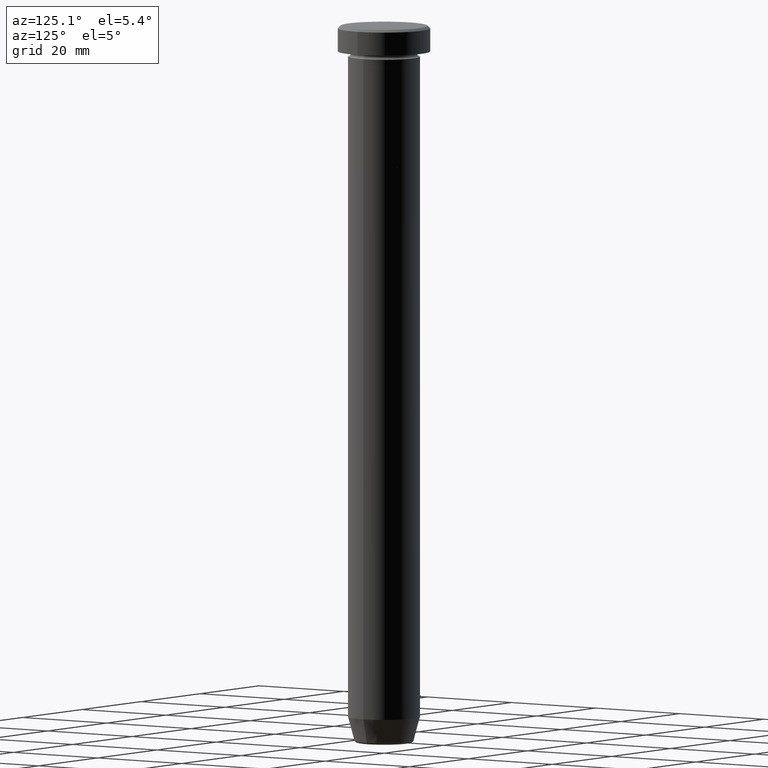
[diagram: clean part render]
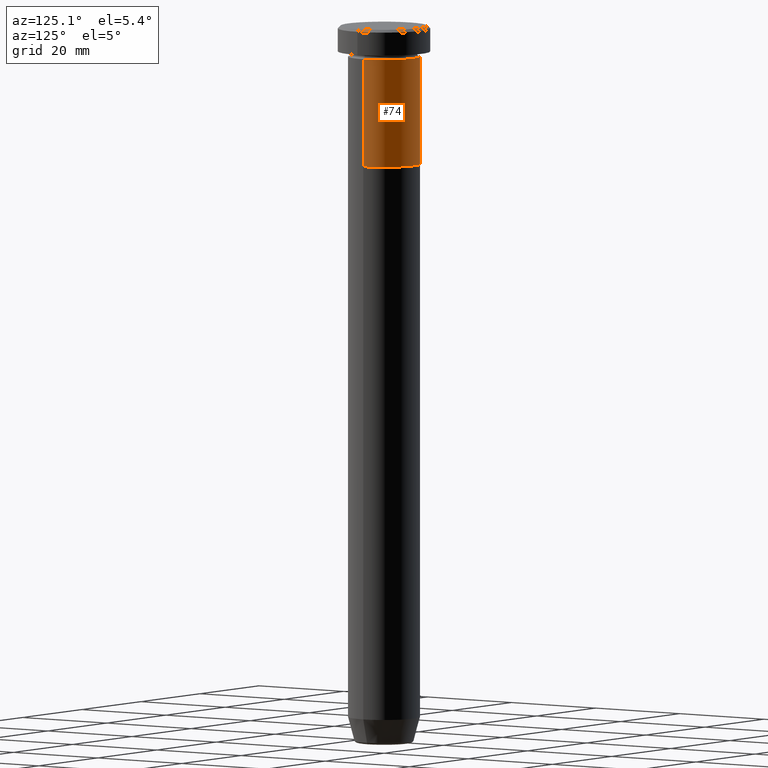
[diagram: same view with one face highlighted and labeled with its STEP entity id]
A machine part, auxiliary view. The second image highlights one B-rep face of the part: STEP entity #74.
In plain terms, the highlighted cylindrical surface (edge-blend (fillet) strip) has radius 7 mm, axis along (-0, -0, 1).
Its self-contained STEP definition (entity closure, byte-faithful):
#16 = DIRECTION ( 'NONE',  ( 1.000000000000000000, 0.000000000000000000, 0.000000000000000000 ) ) ;
#28 = DIRECTION ( 'NONE',  ( -0.000000000000000000, -0.000000000000000000, 1.000000000000000000 ) ) ;
#32 = CIRCLE ( 'NONE', #174, 7.000000000000000000 ) ;
#43 = VERTEX_POINT ( 'NONE', #201 ) ;
#68 = DIRECTION ( 'NONE',  ( 1.000000000000000000, 0.000000000000000000, 0.000000000000000000 ) ) ;
#74 = ADVANCED_FACE ( 'NONE', ( #462 ), #427, .T. ) ;
#121 = EDGE_CURVE ( 'NONE', #351, #43, #579, .T. ) ;
#128 = VECTOR ( 'NONE', #28, 1000.000000000000000 ) ;
#135 = CARTESIAN_POINT ( 'NONE',  ( -7.000000000000000000, 8.572527594031473190E-16, 0.000000000000000000 ) ) ;
#174 = AXIS2_PLACEMENT_3D ( 'NONE', #352, #580, #382 ) ;
#175 = AXIS2_PLACEMENT_3D ( 'NONE', #566, #209, #68 ) ;
#201 = CARTESIAN_POINT ( 'NONE',  ( -7.000000000000000000, 8.572527594031473190E-16, -6.000000000000000000 ) ) ;
#209 = DIRECTION ( 'NONE',  ( -0.000000000000000000, -0.000000000000000000, 1.000000000000000000 ) ) ;
#249 = EDGE_LOOP ( 'NONE', ( #412, #459, #550, #302 ) ) ;
#279 = DIRECTION ( 'NONE',  ( -0.000000000000000000, -0.000000000000000000, 1.000000000000000000 ) ) ;
#302 = ORIENTED_EDGE ( 'NONE', *, *, #432, .F. ) ;
#306 = CARTESIAN_POINT ( 'NONE',  ( 7.000000000000000000, 0.000000000000000000, 0.000000000000000000 ) ) ;
#351 = VERTEX_POINT ( 'NONE', #504 ) ;
#352 = CARTESIAN_POINT ( 'NONE',  ( 0.000000000000000000, 0.000000000000000000, -6.000000000000000000 ) ) ;
#353 = LINE ( 'NONE', #306, #128 ) ;
#360 = CARTESIAN_POINT ( 'NONE',  ( 7.000000000000000000, 0.000000000000000000, -6.000000000000000000 ) ) ;
#382 = DIRECTION ( 'NONE',  ( 1.000000000000000000, 0.000000000000000000, 0.000000000000000000 ) ) ;
#391 = VECTOR ( 'NONE', #537, 1000.000000000000000 ) ;
#396 = CIRCLE ( 'NONE', #175, 7.000000000000000000 ) ;
#410 = VERTEX_POINT ( 'NONE', #431 ) ;
#412 = ORIENTED_EDGE ( 'NONE', *, *, #516, .T. ) ;
#427 = CYLINDRICAL_SURFACE ( 'NONE', #486, 7.000000000000000000 ) ;
#431 = CARTESIAN_POINT ( 'NONE',  ( 7.000000000000000000, 0.000000000000000000, -27.00000000000000000 ) ) ;
#432 = EDGE_CURVE ( 'NONE', #410, #455, #353, .T. ) ;
#455 = VERTEX_POINT ( 'NONE', #360 ) ;
#459 = ORIENTED_EDGE ( 'NONE', *, *, #121, .T. ) ;
#462 = FACE_OUTER_BOUND ( 'NONE', #249, .T. ) ;
#471 = CARTESIAN_POINT ( 'NONE',  ( 0.000000000000000000, 0.000000000000000000, 0.000000000000000000 ) ) ;
#486 = AXIS2_PLACEMENT_3D ( 'NONE', #471, #279, #16 ) ;
#504 = CARTESIAN_POINT ( 'NONE',  ( -7.000000000000000000, 8.572527594031473190E-16, -27.00000000000000000 ) ) ;
#516 = EDGE_CURVE ( 'NONE', #410, #351, #396, .T. ) ;
#537 = DIRECTION ( 'NONE',  ( -0.000000000000000000, -0.000000000000000000, 1.000000000000000000 ) ) ;
#550 = ORIENTED_EDGE ( 'NONE', *, *, #569, .F. ) ;
#566 = CARTESIAN_POINT ( 'NONE',  ( 0.000000000000000000, 0.000000000000000000, -27.00000000000000000 ) ) ;
#569 = EDGE_CURVE ( 'NONE', #455, #43, #32, .T. ) ;
#579 = LINE ( 'NONE', #135, #391 ) ;
#580 = DIRECTION ( 'NONE',  ( -0.000000000000000000, -0.000000000000000000, 1.000000000000000000 ) ) ;